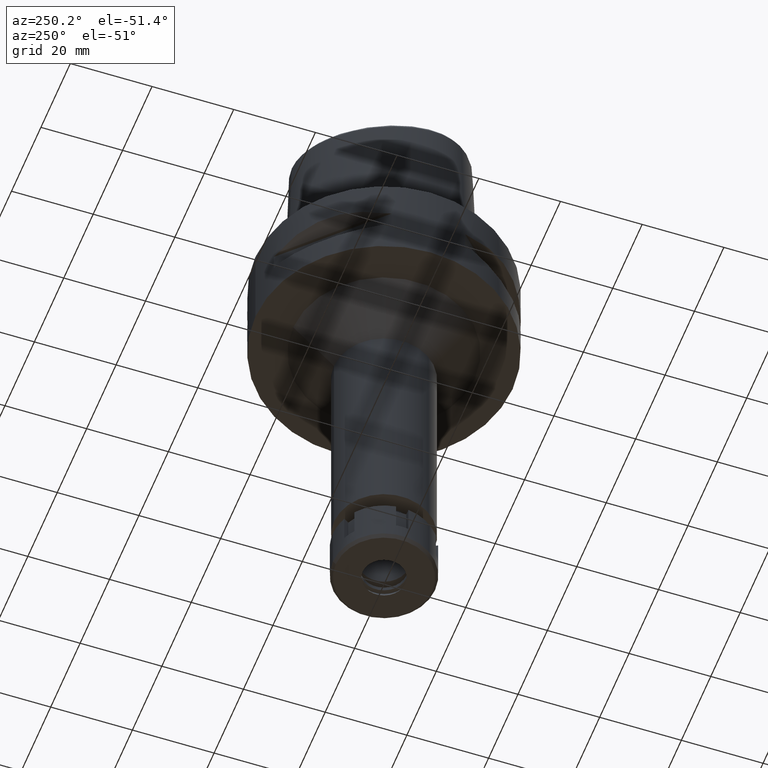
[diagram: clean part render]
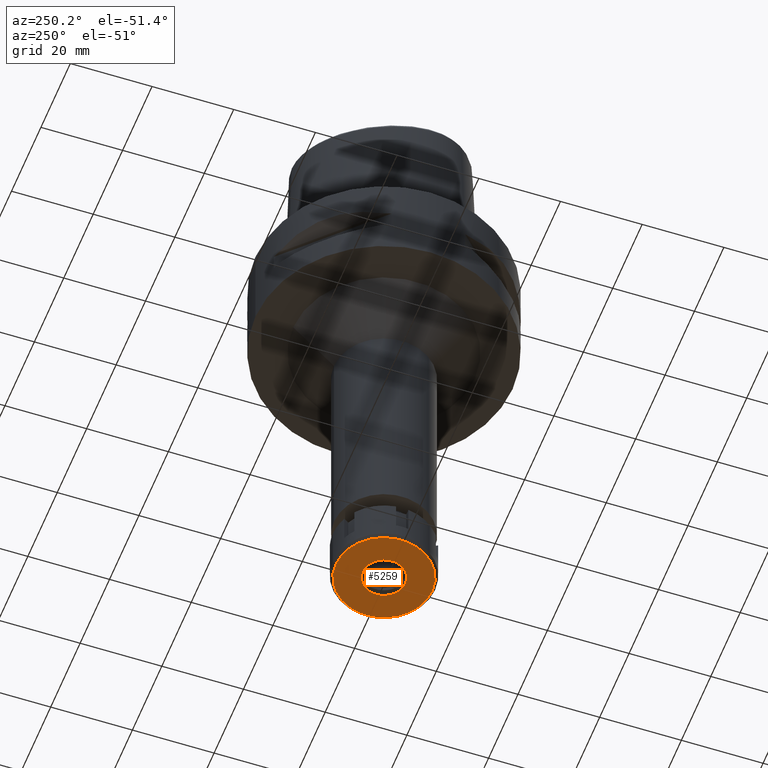
[diagram: same view with one face highlighted and labeled with its STEP entity id]
A machine part, auxiliary view. The second image highlights one B-rep face of the part: STEP entity #5259.
In plain terms, the highlighted planar face has unit normal (0, 0, -1).
Its self-contained STEP definition (entity closure, byte-faithful):
#1 = ORIENTED_EDGE ( 'NONE', *, *, #4262, .F. ) ;
#115 = CIRCLE ( 'NONE', #2723, 11.79999999999999893 ) ;
#137 = CARTESIAN_POINT ( 'NONE',  ( 0.0000000000000000000, 11.79999999999999893, -11.00000000000000000 ) ) ;
#168 = DIRECTION ( 'NONE',  ( 0.0000000000000000000, -1.000000000000000000, 0.0000000000000000000 ) ) ;
#474 = EDGE_CURVE ( 'NONE', #2636, #2127, #830, .T. ) ;
#683 = CARTESIAN_POINT ( 'NONE',  ( 0.0000000000000000000, 5.250000000000000000, -11.00000000000000000 ) ) ;
#823 = VERTEX_POINT ( 'NONE', #2510 ) ;
#830 = CIRCLE ( 'NONE', #2455, 5.250000000000000000 ) ;
#874 = DIRECTION ( 'NONE',  ( 0.0000000000000000000, 0.0000000000000000000, -1.000000000000000000 ) ) ;
#944 = AXIS2_PLACEMENT_3D ( 'NONE', #2788, #2368, #1934 ) ;
#1294 = CARTESIAN_POINT ( 'NONE',  ( 0.0000000000000000000, 0.0000000000000000000, -11.00000000000000000 ) ) ;
#1342 = CARTESIAN_POINT ( 'NONE',  ( 0.0000000000000000000, -5.250000000000000000, -11.00000000000000000 ) ) ;
#1471 = EDGE_CURVE ( 'NONE', #1814, #823, #2994, .T. ) ;
#1553 = AXIS2_PLACEMENT_3D ( 'NONE', #2334, #5307, #4071 ) ;
#1814 = VERTEX_POINT ( 'NONE', #137 ) ;
#1832 = AXIS2_PLACEMENT_3D ( 'NONE', #1294, #874, #4215 ) ;
#1934 = DIRECTION ( 'NONE',  ( 0.0000000000000000000, -1.000000000000000000, 0.0000000000000000000 ) ) ;
#2127 = VERTEX_POINT ( 'NONE', #1342 ) ;
#2334 = CARTESIAN_POINT ( 'NONE',  ( 0.0000000000000000000, 0.0000000000000000000, -11.00000000000000000 ) ) ;
#2368 = DIRECTION ( 'NONE',  ( 0.0000000000000000000, 0.0000000000000000000, -1.000000000000000000 ) ) ;
#2455 = AXIS2_PLACEMENT_3D ( 'NONE', #5377, #3683, #4957 ) ;
#2510 = CARTESIAN_POINT ( 'NONE',  ( 0.0000000000000000000, -11.79999999999999893, -11.00000000000000000 ) ) ;
#2636 = VERTEX_POINT ( 'NONE', #683 ) ;
#2723 = AXIS2_PLACEMENT_3D ( 'NONE', #3576, #4004, #168 ) ;
#2788 = CARTESIAN_POINT ( 'NONE',  ( 0.0000000000000000000, 0.0000000000000000000, -11.00000000000000000 ) ) ;
#2852 = EDGE_CURVE ( 'NONE', #823, #1814, #115, .T. ) ;
#2994 = CIRCLE ( 'NONE', #1553, 11.79999999999999893 ) ;
#3127 = EDGE_LOOP ( 'NONE', ( #3508, #1 ) ) ;
#3508 = ORIENTED_EDGE ( 'NONE', *, *, #474, .F. ) ;
#3576 = CARTESIAN_POINT ( 'NONE',  ( 0.0000000000000000000, 0.0000000000000000000, -11.00000000000000000 ) ) ;
#3683 = DIRECTION ( 'NONE',  ( 0.0000000000000000000, 0.0000000000000000000, -1.000000000000000000 ) ) ;
#3882 = ORIENTED_EDGE ( 'NONE', *, *, #1471, .F. ) ;
#4004 = DIRECTION ( 'NONE',  ( 0.0000000000000000000, 0.0000000000000000000, 1.000000000000000000 ) ) ;
#4071 = DIRECTION ( 'NONE',  ( 0.0000000000000000000, 1.000000000000000000, 0.0000000000000000000 ) ) ;
#4215 = DIRECTION ( 'NONE',  ( 0.0000000000000000000, -1.000000000000000000, 0.0000000000000000000 ) ) ;
#4262 = EDGE_CURVE ( 'NONE', #2127, #2636, #4627, .T. ) ;
#4434 = EDGE_LOOP ( 'NONE', ( #3882, #5378 ) ) ;
#4627 = CIRCLE ( 'NONE', #1832, 5.250000000000000000 ) ;
#4923 = PLANE ( 'NONE',  #944 ) ;
#4957 = DIRECTION ( 'NONE',  ( 0.0000000000000000000, 1.000000000000000000, 0.0000000000000000000 ) ) ;
#5259 = ADVANCED_FACE ( 'NONE', ( #5371, #5484 ), #4923, .T. ) ;
#5307 = DIRECTION ( 'NONE',  ( 0.0000000000000000000, 0.0000000000000000000, 1.000000000000000000 ) ) ;
#5371 = FACE_OUTER_BOUND ( 'NONE', #4434, .T. ) ;
#5377 = CARTESIAN_POINT ( 'NONE',  ( 0.0000000000000000000, 0.0000000000000000000, -11.00000000000000000 ) ) ;
#5378 = ORIENTED_EDGE ( 'NONE', *, *, #2852, .F. ) ;
#5484 = FACE_BOUND ( 'NONE', #3127, .T. ) ;